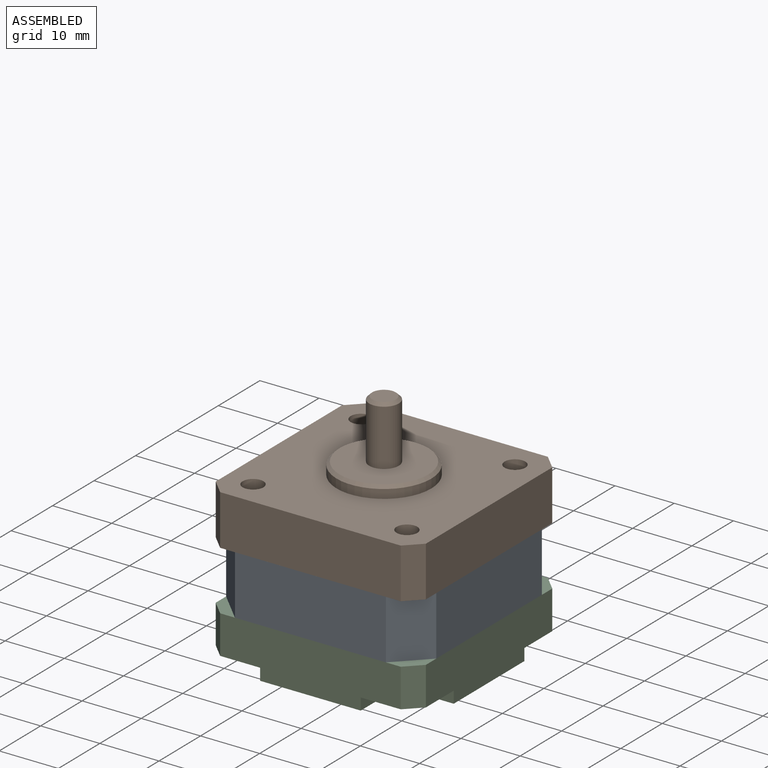
[diagram: assembled view]
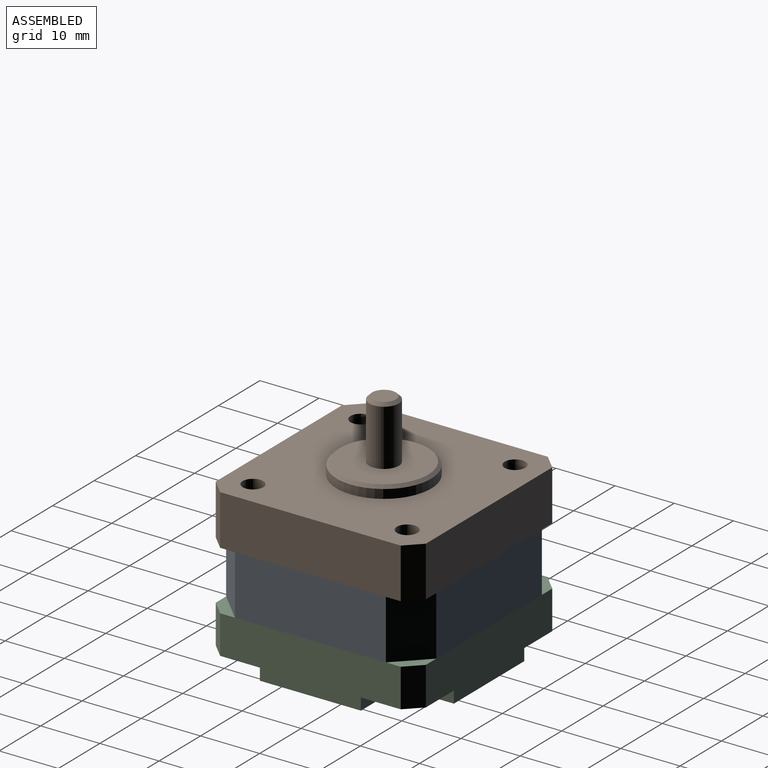
[diagram: assembled view, second angle]
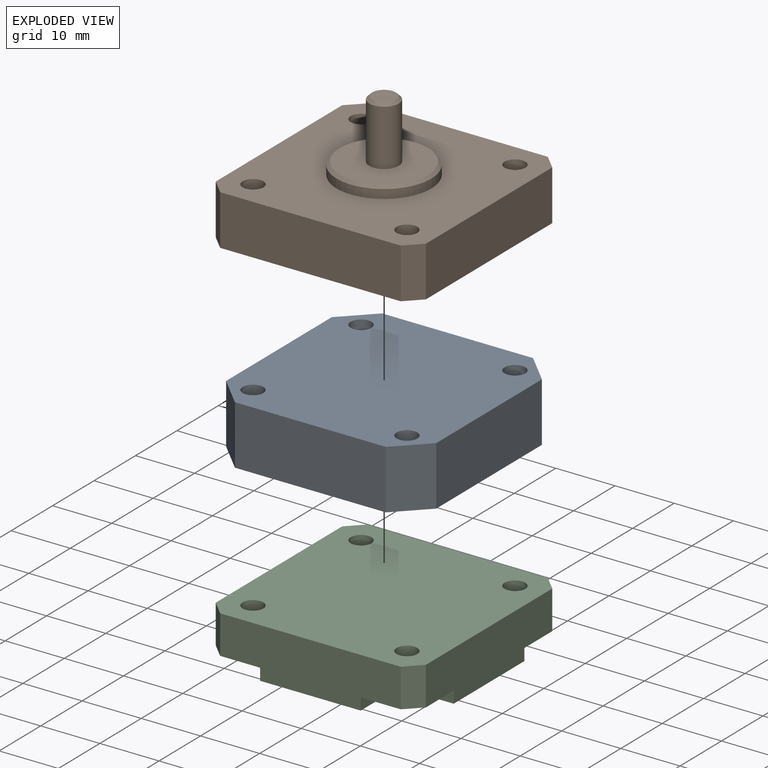
[diagram: exploded view]
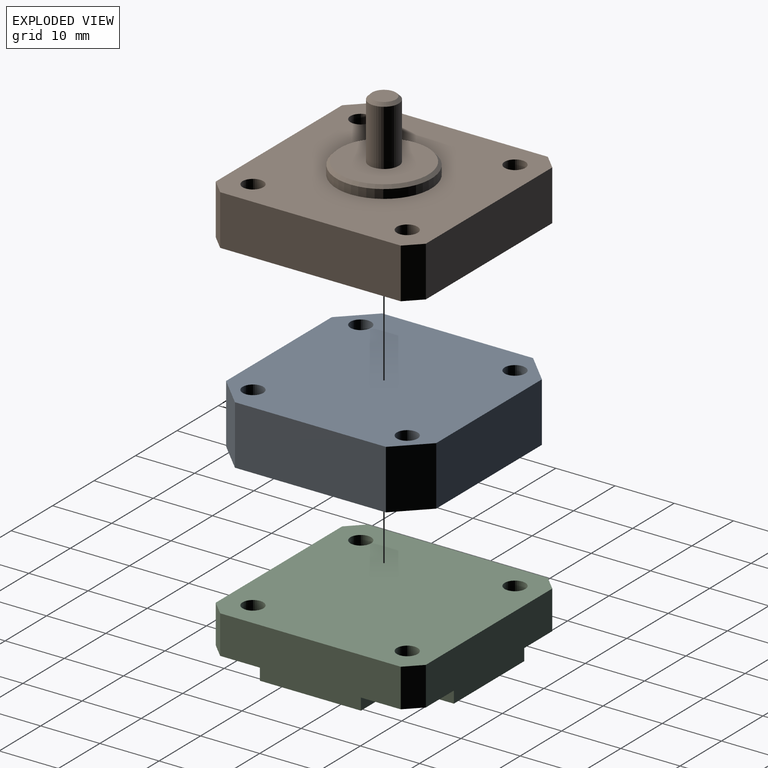
[diagram: exploded view, second angle]
ASSEMBLY  parts=3 mates=2
PART A: 14 faces, bbox 35.5x35.5x10 mm
  f0: plane 25.5x10mm, normal (1,0,0), area 255mm2, adj f4,f5,f7,f8
  f1: plane 25.5x10mm, normal (0,1,0), area 255mm2, adj f4,f5,f6,f7
  f2: plane 25.5x10mm, normal (-1,0,0), area 255mm2, adj f4,f5,f6,f9
  f3: plane 25.5x10mm, normal (0,-1,0), area 255mm2, adj f4,f5,f8,f9
  f4: plane 35.5x35.5mm, normal (0,0,1), area 1171.8mm2, adj f0,f1,f2,f3,f6,f7,f8,f9
  f5: plane 35.5x35.5mm, normal (0,0,-1), area 1171.8mm2, adj f0,f1,f2,f3,f6,f7,f8,f9
  f6: plane 10x5mm, normal (-0.71,0.71,0), area 70.7mm2, adj f1,f2,f4,f5
  f7: plane 10x5mm, normal (0.71,0.71,0), area 70.7mm2, adj f0,f1,f4,f5
  f8: plane 10x5mm, normal (0.71,-0.71,0), area 70.7mm2, adj f0,f3,f4,f5
  f9: plane 10x5mm, normal (-0.71,-0.71,0), area 70.7mm2, adj f2,f3,f4,f5
  f10: cylinder r=1.75mm len=10mm, axis (0,0,-1), area 110mm2, adj f4,f5
  f11: cylinder r=1.75mm len=10mm, axis (0,0,-1), area 110mm2, adj f4,f5
  f12: cylinder r=1.75mm len=10mm, axis (0,0,-1), area 110mm2, adj f4,f5
  f13: cylinder r=1.75mm len=10mm, axis (0,0,-1), area 110mm2, adj f4,f5
PART B: 20 faces, bbox 35.5x35.5x20.5 mm
  f0: plane 30.5x8.5mm, normal (1,0,0), area 259.2mm2, adj f4,f5,f8,f9
  f1: plane 30.5x8.5mm, normal (0,1,0), area 259.2mm2, adj f4,f5,f6,f8
  f2: plane 30.5x8.5mm, normal (-1,0,0), area 259.2mm2, adj f4,f5,f6,f7
  f3: plane 30.5x8.5mm, normal (0,-1,0), area 259.2mm2, adj f4,f5,f7,f9
  f4: plane 35.5x35.5mm, normal (0,0,1), area 1008.2mm2, adj f0,f1,f2,f3,f6,f7,f8,f9
  f5: plane 35.5x35.5mm, normal (0,0,-1), area 1209.3mm2, adj f0,f1,f2,f3,f6,f7,f8,f9
  f6: plane 8.5x2.5mm, normal (-0.71,0.71,0), area 30.1mm2, adj f1,f2,f4,f5
  f7: plane 8.5x2.5mm, normal (-0.71,-0.71,0), area 30.1mm2, adj f2,f3,f4,f5
  f8: plane 8.5x2.5mm, normal (0.71,0.71,0), area 30.1mm2, adj f0,f1,f4,f5
  f9: plane 8.5x2.5mm, normal (0.71,-0.71,0), area 30.1mm2, adj f0,f3,f4,f5
  f10: cylinder r=8mm len=16mm, axis (0,0,-1), area 75.4mm2, adj f4,f15
  f11: plane 15x15mm, normal (0,0,1), area 157.1mm2, adj f12,f15
  f12: cylinder r=2.5mm len=9.5mm, axis (0,0,-1), area 149.2mm2, adj f11,f14
  f13: plane 4x4mm, normal (0,0,1), area 12.6mm2, adj f14
  f14: cone r=2mm half-angle=45deg, axis (0,0,-1), area 10mm2, adj f12,f13
  f15: cone r=7.5mm half-angle=45deg, axis (0,0,-1), area 34.4mm2, adj f10,f11
  f16: cylinder r=1.75mm len=8.5mm, axis (0,0,-1), area 93.5mm2, adj f4,f5
  f17: cylinder r=1.75mm len=8.5mm, axis (0,0,-1), area 93.5mm2, adj f4,f5
  f18: cylinder r=1.75mm len=8.5mm, axis (0,0,-1), area 93.5mm2, adj f4,f5
  f19: cylinder r=1.75mm len=8.5mm, axis (0,0,-1), area 93.5mm2, adj f4,f5
PART C: 30 faces, bbox 35.5x35.5x8.5 mm
  f0: plane 30.5x8.5mm, normal (0,-1,0), area 232.3mm2, adj f2,f9,f11,f13,f16,f17,f26,f29
  f1: plane 30.5x8.5mm, normal (-1,0,0), area 232.4mm2, adj f2,f9,f10,f11,f14,f17,f18,f21
  f2: plane 35.5x35.5mm, normal (0,0,-1), area 936.5mm2, adj f0,f1,f7,f8,f14,f15,f16,f18
  f3: cylinder r=1.75mm len=6.5mm, axis (0,0,-1), area 71.5mm2, adj f9,f29
  f4: cylinder r=1.75mm len=6.5mm, axis (0,0,-1), area 71.5mm2, adj f9,f25
  f5: cylinder r=1.75mm len=6.5mm, axis (0,0,-1), area 71.5mm2, adj f9,f21
  f6: cylinder r=1.75mm len=6.5mm, axis (0,0,-1), area 71.5mm2, adj f9,f17
  f7: plane 30.5x8.5mm, normal (1,0,0), area 232.4mm2, adj f2,f9,f12,f13,f22,f25,f28,f29
  f8: plane 30.5x8.5mm, normal (0,1,0), area 232.2mm2, adj f2,f9,f10,f12,f19,f21,f24,f25
  f9: plane 35.5x35.5mm, normal (0,0,1), area 1209.3mm2, adj f0,f1,f3,f4,f5,f6,f7,f8
  f10: plane 6.5x2.5mm, normal (-0.71,0.71,0), area 23mm2, adj f1,f8,f9,f21
  f11: plane 6.5x2.5mm, normal (-0.71,-0.71,0), area 23mm2, adj f0,f1,f9,f17
  f12: plane 6.5x2.5mm, normal (0.71,0.71,0), area 23mm2, adj f7,f8,f9,f25
  f13: plane 6.5x2.5mm, normal (0.71,-0.71,0), area 23mm2, adj f0,f7,f9,f29
  f14: plane 4.75x2mm, normal (0,-1,0), area 9.5mm2, adj f1,f2,f15,f17
  f15: cylinder r=4.5mm len=4.5mm, axis (0,0,-1), area 14.1mm2, adj f2,f14,f16,f17
  f16: plane 4.72x2mm, normal (-1,0,0), area 9.4mm2, adj f0,f2,f15,f17
  f17: plane 9.25x9.22mm, normal (0,0,-1), area 68.2mm2, adj f0,f1,f6,f11,f14,f15,f16
  f18: plane 4.75x2mm, normal (0,1,0), area 9.5mm2, adj f1,f2,f20,f21
  f19: plane 4.72x2mm, normal (-1,0,0), area 9.4mm2, adj f2,f8,f20,f21
  f20: cylinder r=4.5mm len=4.5mm, axis (0,0,-1), area 14.1mm2, adj f2,f18,f19,f21
  f21: plane 9.25x9.22mm, normal (0,0,-1), area 68.2mm2, adj f1,f5,f8,f10,f18,f19,f20
  f22: plane 4.75x2mm, normal (0,1,0), area 9.5mm2, adj f2,f7,f23,f25
  f23: cylinder r=4.5mm len=4.5mm, axis (0,0,-1), area 14.1mm2, adj f2,f22,f24,f25
  f24: plane 4.72x2mm, normal (1,0,0), area 9.4mm2, adj f2,f8,f23,f25
  f25: plane 9.25x9.22mm, normal (0,0,-1), area 68.2mm2, adj f4,f7,f8,f12,f22,f23,f24
  f26: plane 4.72x2mm, normal (1,0,0), area 9.4mm2, adj f0,f2,f27,f29
  f27: cylinder r=4.5mm len=4.5mm, axis (0,0,-1), area 14.1mm2, adj f2,f26,f28,f29
  f28: plane 4.75x2mm, normal (0,-1,0), area 9.5mm2, adj f2,f7,f27,f29
  f29: plane 9.25x9.22mm, normal (0,0,-1), area 68.2mm2, adj f0,f3,f7,f13,f26,f27,f28
PLACE A t=(0,0,-30.7)mm
PLACE B t=(0,0,-30.7)mm
PLACE C t=(0,0,-30.7)mm
MATE fastened B.f12 <-> A.f4  axis (0,0,-1) through (0,0,-12.2)mm
MATE fastened A.f5 <-> C.f9  axis (0,0,-1) through (0,0,-22.2)mm
